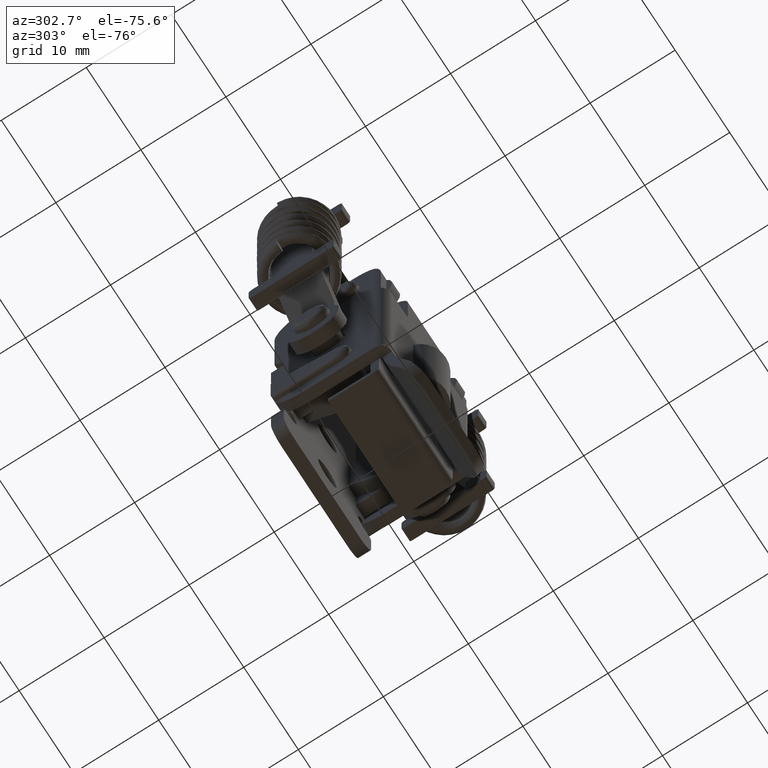
[diagram: clean part render]
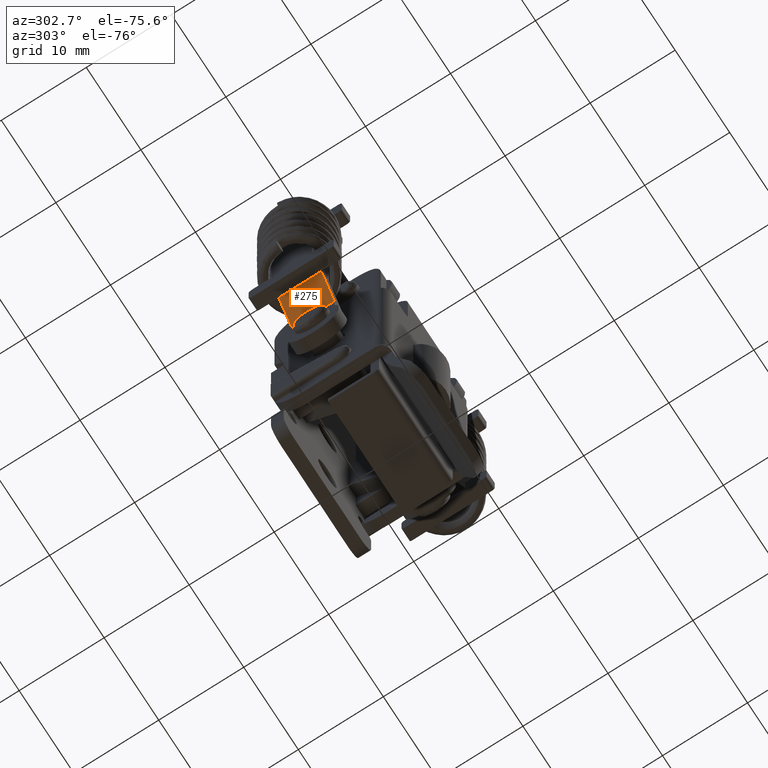
[diagram: same view with one face highlighted and labeled with its STEP entity id]
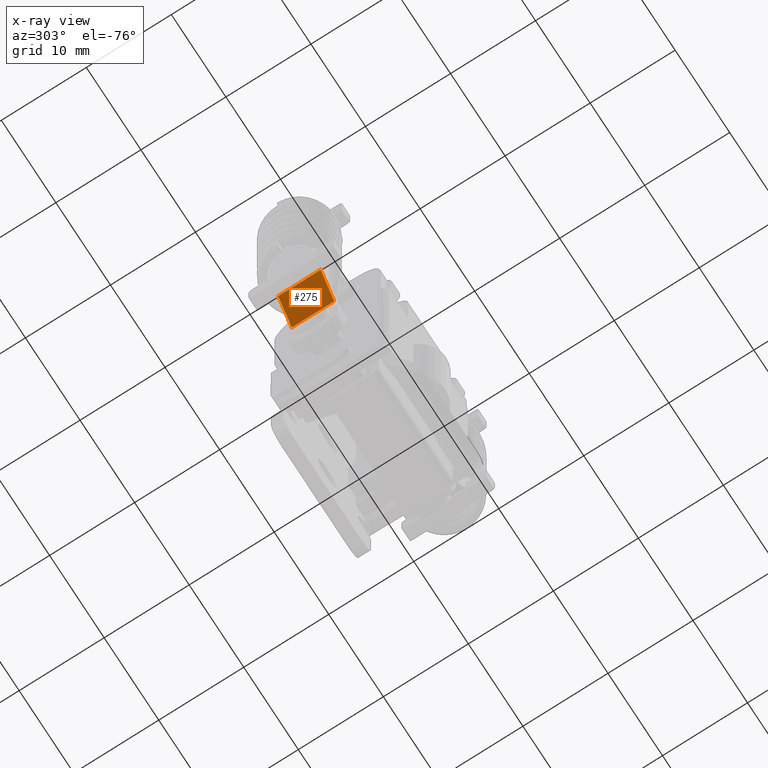
[diagram: x-ray of the same camera — body ghosted, the highlighted face saturated]
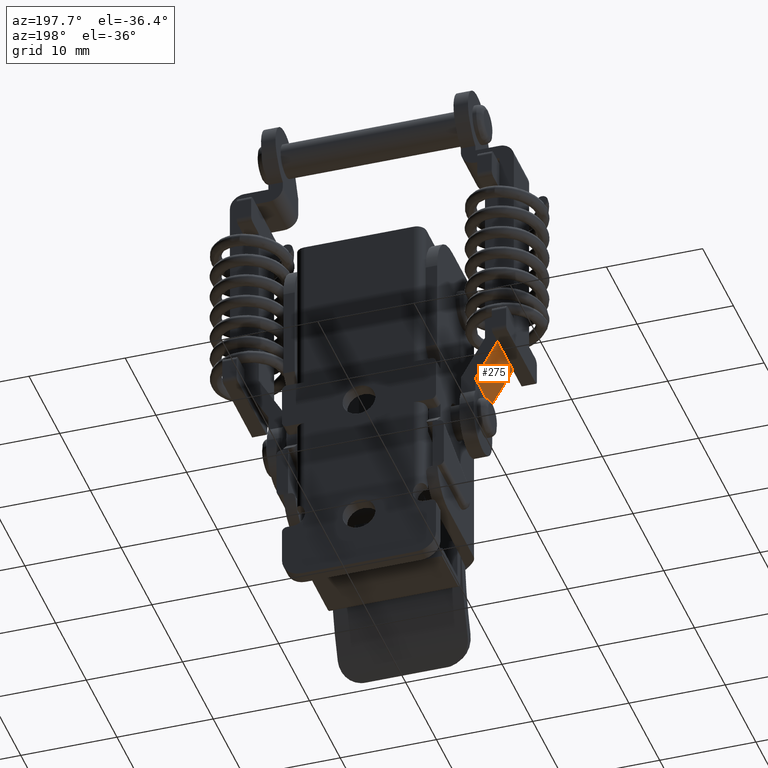
[diagram: same view with one face highlighted and labeled with its STEP entity id]
A machine part, auxiliary view. The second image highlights one B-rep face of the part: STEP entity #275.
The next image is the same camera in x-ray: the body ghosted, the highlighted face saturated — about 0% of this face is hidden behind the body in this view.
A second angle (auxiliary view) of the same face is appended — the face is thin or edge-on in the first view.
In plain terms, the highlighted planar face has unit normal (0.866, -0, 0.5).
Its self-contained STEP definition (entity closure, byte-faithful):
#275=ADVANCED_FACE('',(#702),#701,.F.);
#701=PLANE('',#4416);
#702=FACE_OUTER_BOUND('',#4417,.T.);
#4413=CARTESIAN_POINT('',(-1.35000000000E+01,-3.00055383617E+00,7.93301270190E+00));
#4414=DIRECTION('',(8.66025403788E-01,-0.00000000000E+00,4.99999999993E-01));
#4415=DIRECTION('',(4.99999999993E-01,0.00000000000E+00,-8.66025403788E-01));
#4416=AXIS2_PLACEMENT_3D('',#4413,#4414,#4415);
#4417=EDGE_LOOP('',(#7872,#7873,#7874,#7875));
#7872=ORIENTED_EDGE('',*,*,#9886,.F.);
#7873=ORIENTED_EDGE('',*,*,#9883,.T.);
#7874=ORIENTED_EDGE('',*,*,#9887,.F.);
#7875=ORIENTED_EDGE('',*,*,#9888,.F.);
#9883=EDGE_CURVE('',#11068,#11110,#11117,.T.);
#9886=EDGE_CURVE('',#11068,#11137,#11138,.T.);
#9887=EDGE_CURVE('',#11144,#11110,#11145,.T.);
#9888=EDGE_CURVE('',#11137,#11144,#11151,.T.);
#11068=VERTEX_POINT('',#17702);
#11110=VERTEX_POINT('',#17729);
#11117=LINE('',#17733,#17734);
#11137=VERTEX_POINT('',#17746);
#11138=LINE('',#17747,#17748);
#11144=VERTEX_POINT('',#17750);
#11145=LINE('',#17751,#17752);
#11151=LINE('',#17754,#17755);
#17702=CARTESIAN_POINT('',(-1.07500000000E+01,2.49977870730E+00,3.16987298100E+00));
#17729=CARTESIAN_POINT('',(-1.07500000000E+01,-2.50022130489E+00,3.16987298100E+00));
#17733=CARTESIAN_POINT('',(-1.07500000000E+01,2.49977870730E+00,3.16987298100E+00));
#17734=VECTOR('',#17735,5.00000001219E+00);
#17735=DIRECTION('',(0.00000000000E+00,-1.00000000000E+00,0.00000000000E+00));
#17746=CARTESIAN_POINT('',(-1.32500000000E+01,2.49947640728E+00,7.50000000000E+00));
#17747=CARTESIAN_POINT('',(-1.07500000000E+01,2.49977870730E+00,3.16987298100E+00));
#17748=VECTOR('',#17749,5.00000000921E+00);
#17749=DIRECTION('',(-4.99999999079E-01,-6.04600046014E-05,8.66025402205E-01));
#17750=CARTESIAN_POINT('',(-1.32500000000E+01,-2.50052360494E+00,7.50000000000E+00));
#17751=CARTESIAN_POINT('',(-1.32500000000E+01,-2.50052360494E+00,7.50000000000E+00));
#17752=VECTOR('',#17753,5.00000000921E+00);
#17753=DIRECTION('',(4.99999999079E-01,6.04600101564E-05,-8.66025402205E-01));
#17754=CARTESIAN_POINT('',(-1.32500000000E+01,2.49947640728E+00,7.50000000000E+00));
#17755=VECTOR('',#17756,5.00000001222E+00);
#17756=DIRECTION('',(0.00000000000E+00,-1.00000000000E+00,0.00000000000E+00));